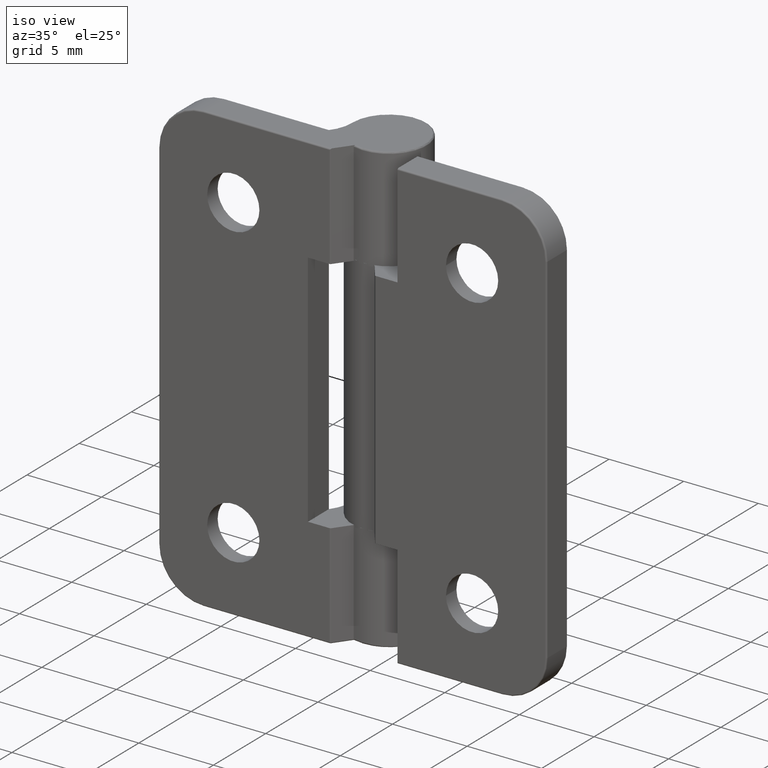
[diagram: clean part render]
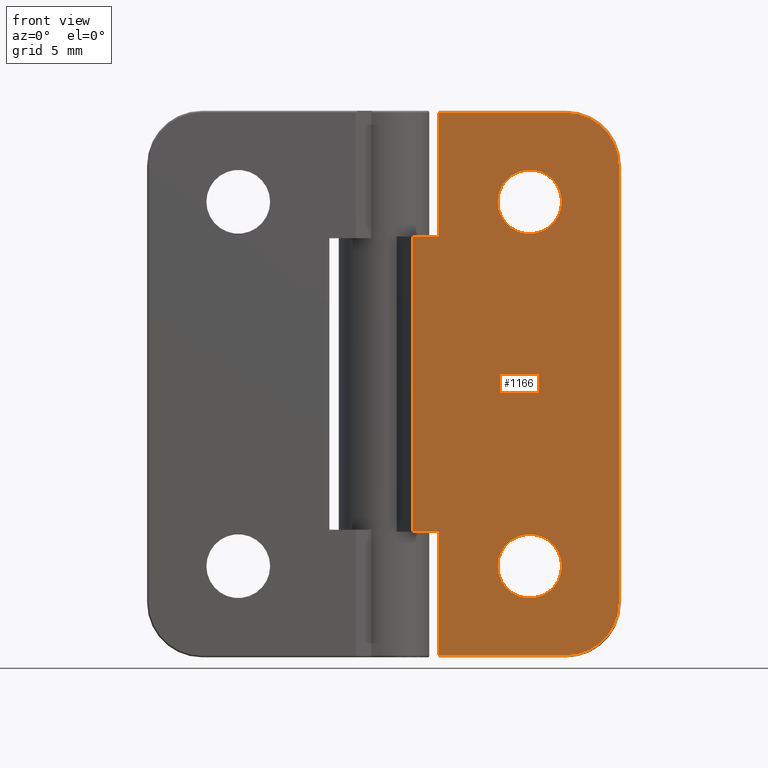
[diagram: tour spotlight — one face highlighted and labeled with its STEP entity id]
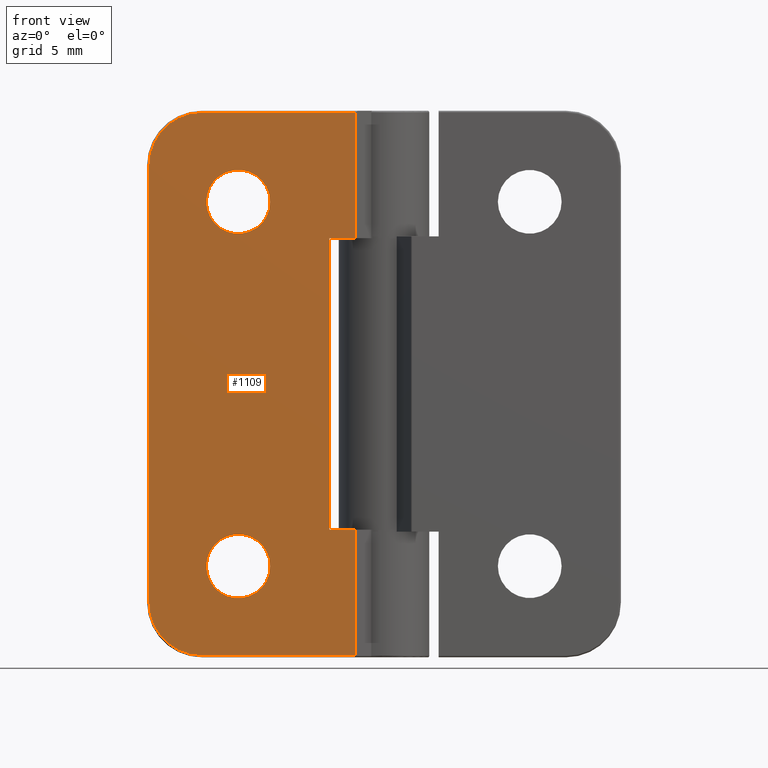
[diagram: tour spotlight — one face highlighted and labeled with its STEP entity id]
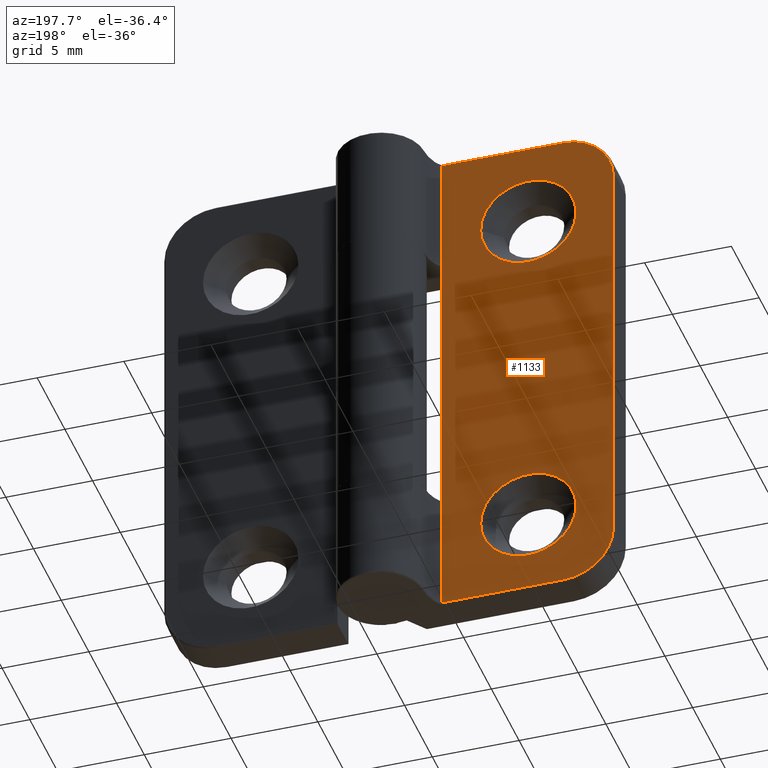
[diagram: tour spotlight — one face highlighted and labeled with its STEP entity id]
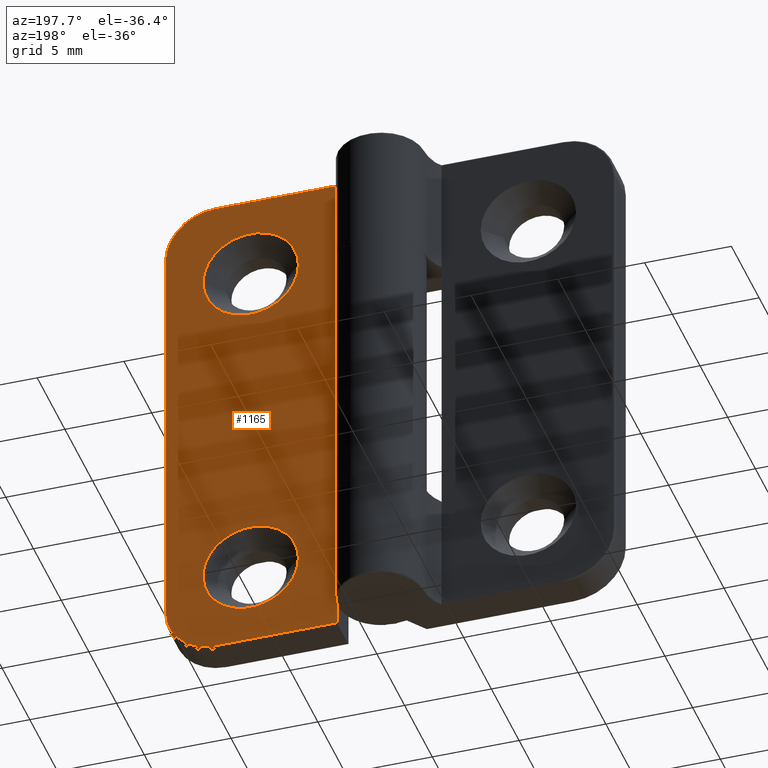
[diagram: tour spotlight — one face highlighted and labeled with its STEP entity id]
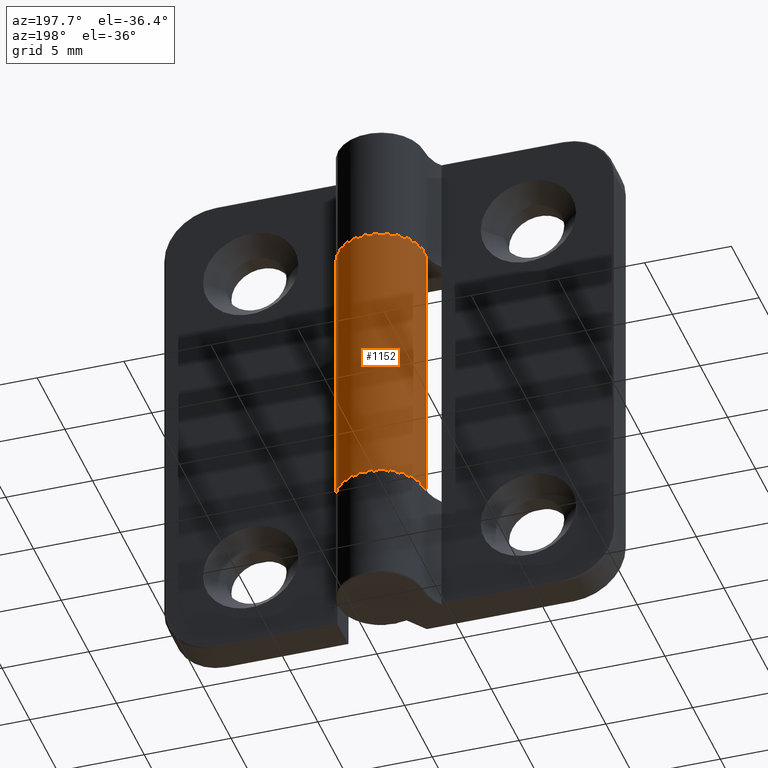
[diagram: tour spotlight — one face highlighted and labeled with its STEP entity id]
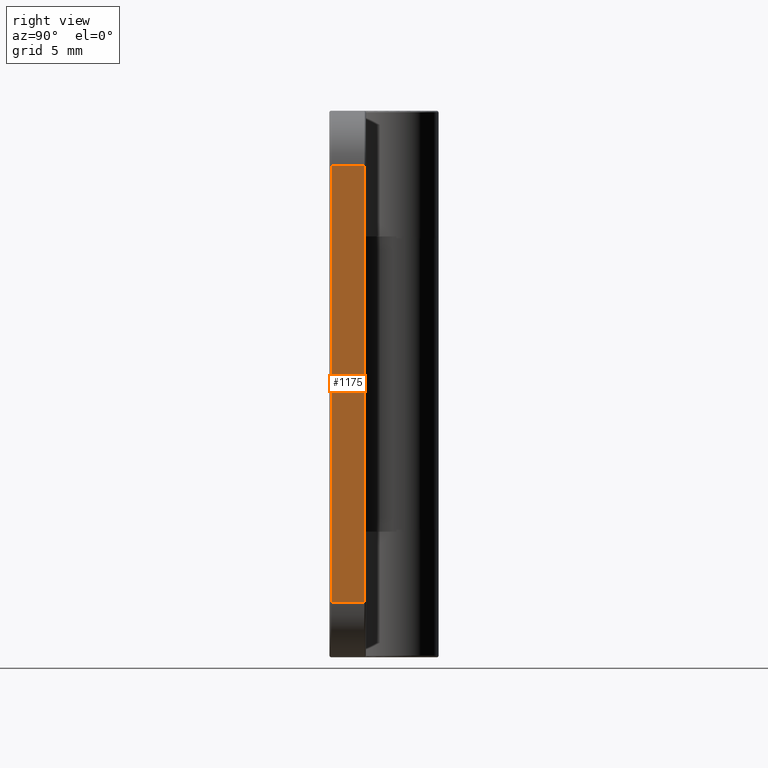
[diagram: tour spotlight — one face highlighted and labeled with its STEP entity id]
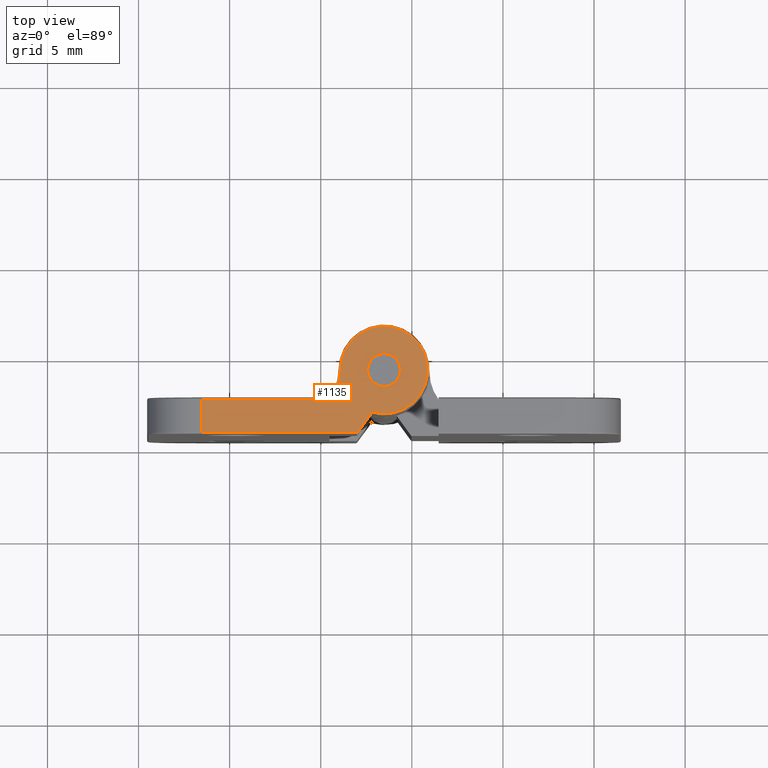
[diagram: tour spotlight — one face highlighted and labeled with its STEP entity id]
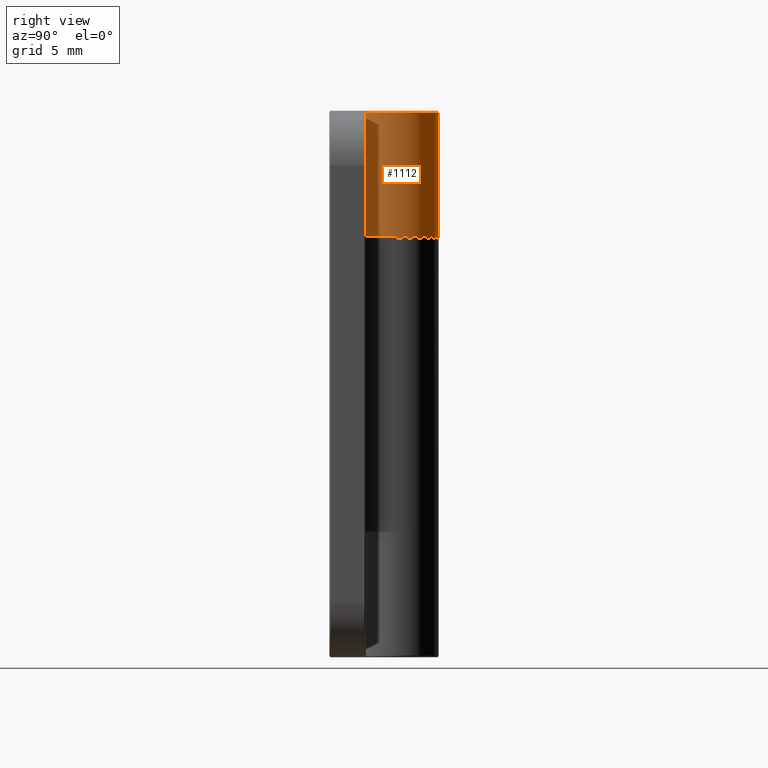
[diagram: tour spotlight — one face highlighted and labeled with its STEP entity id]
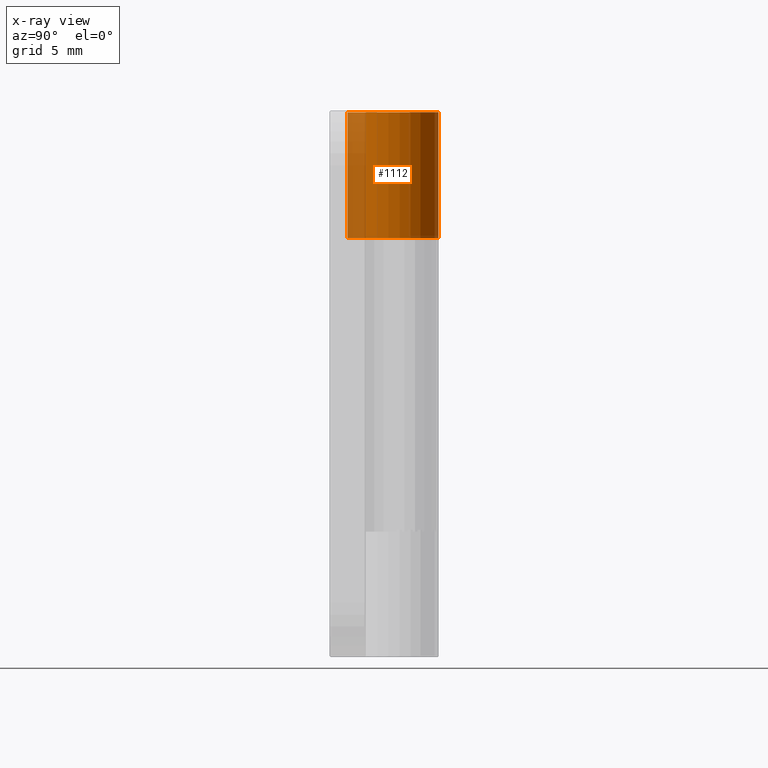
[diagram: x-ray of the same camera — body ghosted, this tour face saturated]
A machine part: a face-by-face anatomy tour. The part has 73 B-rep faces; the first image is the clean iso view, then the 8 largest visible faces are spotlighted one at a time (largest first), each with its STEP entity span.

Face 1 — front view, entity #1166. In plain terms, the highlighted planar face has unit normal (-0, -1, 0).
Definition (entity closure, byte-faithful):
#110=FACE_BOUND('',#351,.T.);
#111=FACE_BOUND('',#352,.T.);
#179=CIRCLE('',#1299,2.9);
#182=CIRCLE('',#1304,2.9);
#193=CIRCLE('',#1322,1.75);
#194=CIRCLE('',#1323,1.75);
#259=FACE_OUTER_BOUND('',#350,.T.);
#350=EDGE_LOOP('',(#1042,#1043,#1044,#1045,#1046,#1047,#1048,#1049,#1050,
#1051));
#351=EDGE_LOOP('',(#1052));
#352=EDGE_LOOP('',(#1053));
#408=LINE('',#1976,#478);
#411=LINE('',#1990,#481);
#414=LINE('',#2001,#484);
#418=LINE('',#2013,#488);
#422=LINE('',#2027,#492);
#426=LINE('',#2037,#496);
#429=LINE('',#2044,#499);
#432=LINE('',#2059,#502);
#478=VECTOR('',#1562,1.44907754082968);
#481=VECTOR('',#1575,6.8);
#484=VECTOR('',#1584,6.8);
#488=VECTOR('',#1594,1.44907754082968);
#492=VECTOR('',#1610,16.2);
#496=VECTOR('',#1622,7.);
#499=VECTOR('',#1629,6.99999999999999);
#502=VECTOR('',#1646,24.);
#567=VERTEX_POINT('',#1974);
#568=VERTEX_POINT('',#1975);
#574=VERTEX_POINT('',#1989);
#578=VERTEX_POINT('',#1999);
#579=VERTEX_POINT('',#2000);
#584=VERTEX_POINT('',#2012);
#590=VERTEX_POINT('',#2035);
#592=VERTEX_POINT('',#2043);
#594=VERTEX_POINT('',#2049);
#596=VERTEX_POINT('',#2055);
#607=VERTEX_POINT('',#2094);
#608=VERTEX_POINT('',#2096);
#701=EDGE_CURVE('',#567,#568,#408,.T.);
#708=EDGE_CURVE('',#574,#567,#411,.T.);
#713=EDGE_CURVE('',#578,#579,#414,.T.);
#719=EDGE_CURVE('',#584,#578,#418,.T.);
#727=EDGE_CURVE('',#584,#568,#422,.T.);
#732=EDGE_CURVE('',#590,#579,#426,.T.);
#735=EDGE_CURVE('',#574,#592,#429,.T.);
#740=EDGE_CURVE('',#592,#594,#179,.T.);
#743=EDGE_CURVE('',#594,#596,#432,.T.);
#745=EDGE_CURVE('',#596,#590,#182,.T.);
#761=EDGE_CURVE('',#607,#607,#193,.T.);
#762=EDGE_CURVE('',#608,#608,#194,.T.);
#1042=ORIENTED_EDGE('',*,*,#701,.T.);
#1043=ORIENTED_EDGE('',*,*,#727,.F.);
#1044=ORIENTED_EDGE('',*,*,#719,.T.);
#1045=ORIENTED_EDGE('',*,*,#713,.T.);
#1046=ORIENTED_EDGE('',*,*,#732,.F.);
#1047=ORIENTED_EDGE('',*,*,#745,.F.);
#1048=ORIENTED_EDGE('',*,*,#743,.F.);
#1049=ORIENTED_EDGE('',*,*,#740,.F.);
#1050=ORIENTED_EDGE('',*,*,#735,.F.);
#1051=ORIENTED_EDGE('',*,*,#708,.T.);
#1052=ORIENTED_EDGE('',*,*,#761,.T.);
#1053=ORIENTED_EDGE('',*,*,#762,.T.);
#1101=PLANE('',#1321);
#1166=ADVANCED_FACE('',(#259,#110,#111),#1101,.T.);
#1299=AXIS2_PLACEMENT_3D('',#2053,#1639,#1640);
#1304=AXIS2_PLACEMENT_3D('',#2062,#1651,#1652);
#1321=AXIS2_PLACEMENT_3D('',#2093,#1690,#1691);
#1322=AXIS2_PLACEMENT_3D('',#2095,#1692,#1693);
#1323=AXIS2_PLACEMENT_3D('',#2097,#1694,#1695);
#1562=DIRECTION('',(1.,7.24058494320754E-17,-5.47998327445962E-16));
#1575=DIRECTION('',(2.40408260132078E-16,1.74069642853504E-32,1.));
#1584=DIRECTION('',(1.77068165512974E-16,1.28207709313462E-32,1.));
#1594=DIRECTION('',(-1.,-7.24058494320754E-17,0.));
#1610=DIRECTION('',(0.,0.,-1.));
#1622=DIRECTION('',(1.,7.24058494320754E-17,0.));
#1629=DIRECTION('',(-1.,-7.24058494320754E-17,0.));
#1639=DIRECTION('center_axis',(-7.24058494320754E-17,1.,0.));
#1640=DIRECTION('ref_axis',(-0.707106781186548,-5.11986671309927E-17,-0.707106781186547));
#1646=DIRECTION('',(0.,0.,1.));
#1651=DIRECTION('center_axis',(-7.24058494320754E-17,1.,0.));
#1652=DIRECTION('ref_axis',(-0.707106781186548,-5.11986671309927E-17,0.707106781186547));
#1690=DIRECTION('center_axis',(7.24058494320754E-17,-1.,0.));
#1691=DIRECTION('ref_axis',(1.,7.24058494320754E-17,0.));
#1692=DIRECTION('center_axis',(-7.24058494320754E-17,1.,0.));
#1693=DIRECTION('ref_axis',(1.,-2.77555756156289E-17,0.));
#1694=DIRECTION('center_axis',(-7.24058494320754E-17,1.,0.));
#1695=DIRECTION('ref_axis',(1.,-2.77555756156289E-17,0.));
#1974=CARTESIAN_POINT('',(-3.,0.,-8.1));
#1975=CARTESIAN_POINT('',(-1.55092245917032,0.,-8.1));
#1976=CARTESIAN_POINT('',(-8.,-4.16333634234434E-16,-8.09999999999999));
#1989=CARTESIAN_POINT('',(-3.,-1.10871456579507E-16,-14.9));
#1990=CARTESIAN_POINT('',(-3.,-1.38777878078145E-16,-10.9771103082016));
#1999=CARTESIAN_POINT('',(-3.,0.,8.1));
#2000=CARTESIAN_POINT('',(-3.,-1.10871456579507E-16,14.9));
#2001=CARTESIAN_POINT('',(-3.,-1.38777878078145E-16,4.05));
#2012=CARTESIAN_POINT('',(-1.55092245917032,0.,8.1));
#2013=CARTESIAN_POINT('',(-3.94807878411039,-1.38777878078145E-16,8.1));
#2027=CARTESIAN_POINT('',(-1.55092245917032,0.,0.));
#2035=CARTESIAN_POINT('',(-10.,-6.07153216591882E-16,14.9));
#2037=CARTESIAN_POINT('',(-6.50000000501836,-3.64291929955129E-16,14.9));
#2043=CARTESIAN_POINT('',(-10.,-6.17712402604035E-16,-14.9));
#2044=CARTESIAN_POINT('',(-6.50000000501836,-3.64291929955129E-16,-14.9));
#2049=CARTESIAN_POINT('',(-12.9,-8.17130179944901E-16,-12.));
#2053=CARTESIAN_POINT('Origin',(-10.,-6.07153216591882E-16,-12.));
#2055=CARTESIAN_POINT('',(-12.9,-8.32667268468867E-16,12.));
#2059=CARTESIAN_POINT('',(-12.9,-8.32667268468867E-16,0.));
#2062=CARTESIAN_POINT('Origin',(-10.,-6.07153216591882E-16,12.));
#2093=CARTESIAN_POINT('Origin',(-13.,-8.32667268468867E-16,0.));
#2094=CARTESIAN_POINT('',(-9.75,-7.84095011141517E-16,10.));
#2095=CARTESIAN_POINT('Origin',(-8.,-8.32667268468867E-16,10.));
#2096=CARTESIAN_POINT('',(-9.75,-7.84095011141517E-16,-10.));
#2097=CARTESIAN_POINT('Origin',(-8.,-8.32667268468867E-16,-10.));

Face 2 — front view, entity #1109. In plain terms, the highlighted planar face has unit normal (0, -1, 0).
Definition (entity closure, byte-faithful):
#94=FACE_BOUND('',#278,.T.);
#95=FACE_BOUND('',#279,.T.);
#126=CIRCLE('',#1195,2.9);
#127=CIRCLE('',#1196,2.9);
#128=CIRCLE('',#1197,1.75);
#129=CIRCLE('',#1198,1.75);
#202=FACE_OUTER_BOUND('',#277,.T.);
#277=EDGE_LOOP('',(#788,#789,#790,#791,#792,#793,#794,#795,#796,#797));
#278=EDGE_LOOP('',(#798));
#279=EDGE_LOOP('',(#799));
#371=LINE('',#1745,#441);
#375=LINE('',#1753,#445);
#377=LINE('',#1765,#447);
#379=LINE('',#1777,#449);
#380=LINE('',#1779,#450);
#381=LINE('',#1783,#451);
#382=LINE('',#1787,#452);
#383=LINE('',#1788,#453);
#441=VECTOR('',#1349,16.);
#445=VECTOR('',#1355,1.44907754082968);
#447=VECTOR('',#1367,1.44907754082968);
#449=VECTOR('',#1379,6.9);
#450=VECTOR('',#1380,8.44907754082968);
#451=VECTOR('',#1383,24.);
#452=VECTOR('',#1386,8.44907754082968);
#453=VECTOR('',#1387,6.9);
#511=VERTEX_POINT('',#1743);
#512=VERTEX_POINT('',#1744);
#515=VERTEX_POINT('',#1752);
#520=VERTEX_POINT('',#1764);
#525=VERTEX_POINT('',#1776);
#526=VERTEX_POINT('',#1778);
#527=VERTEX_POINT('',#1780);
#528=VERTEX_POINT('',#1782);
#529=VERTEX_POINT('',#1784);
#530=VERTEX_POINT('',#1786);
#531=VERTEX_POINT('',#1789);
#532=VERTEX_POINT('',#1791);
#613=EDGE_CURVE('',#511,#512,#371,.T.);
#617=EDGE_CURVE('',#512,#515,#375,.T.);
#623=EDGE_CURVE('',#520,#511,#377,.T.);
#629=EDGE_CURVE('',#525,#515,#379,.T.);
#630=EDGE_CURVE('',#526,#525,#380,.T.);
#631=EDGE_CURVE('',#527,#526,#126,.T.);
#632=EDGE_CURVE('',#528,#527,#381,.T.);
#633=EDGE_CURVE('',#529,#528,#127,.T.);
#634=EDGE_CURVE('',#530,#529,#382,.T.);
#635=EDGE_CURVE('',#520,#530,#383,.T.);
#636=EDGE_CURVE('',#531,#531,#128,.T.);
#637=EDGE_CURVE('',#532,#532,#129,.T.);
#788=ORIENTED_EDGE('',*,*,#623,.T.);
#789=ORIENTED_EDGE('',*,*,#613,.T.);
#790=ORIENTED_EDGE('',*,*,#617,.T.);
#791=ORIENTED_EDGE('',*,*,#629,.F.);
#792=ORIENTED_EDGE('',*,*,#630,.F.);
#793=ORIENTED_EDGE('',*,*,#631,.F.);
#794=ORIENTED_EDGE('',*,*,#632,.F.);
#795=ORIENTED_EDGE('',*,*,#633,.F.);
#796=ORIENTED_EDGE('',*,*,#634,.F.);
#797=ORIENTED_EDGE('',*,*,#635,.F.);
#798=ORIENTED_EDGE('',*,*,#636,.T.);
#799=ORIENTED_EDGE('',*,*,#637,.T.);
#1087=PLANE('',#1194);
#1109=ADVANCED_FACE('',(#202,#94,#95),#1087,.T.);
#1194=AXIS2_PLACEMENT_3D('',#1775,#1377,#1378);
#1195=AXIS2_PLACEMENT_3D('',#1781,#1381,#1382);
#1196=AXIS2_PLACEMENT_3D('',#1785,#1384,#1385);
#1197=AXIS2_PLACEMENT_3D('',#1790,#1388,#1389);
#1198=AXIS2_PLACEMENT_3D('',#1792,#1390,#1391);
#1349=DIRECTION('',(6.93889390390723E-17,5.02416507231453E-33,1.));
#1355=DIRECTION('',(1.,7.24058494320754E-17,0.));
#1367=DIRECTION('',(-1.,-7.24058494320754E-17,0.));
#1377=DIRECTION('center_axis',(7.24058494320754E-17,-1.,0.));
#1378=DIRECTION('ref_axis',(1.,7.24058494320754E-17,0.));
#1379=DIRECTION('',(0.,0.,-1.));
#1380=DIRECTION('',(1.,7.24058494320754E-17,0.));
#1381=DIRECTION('center_axis',(-7.24058494320754E-17,1.,0.));
#1382=DIRECTION('ref_axis',(-0.707106781186548,-5.11986671309927E-17,0.707106781186547));
#1383=DIRECTION('',(0.,0.,1.));
#1384=DIRECTION('center_axis',(-7.24058494320754E-17,1.,0.));
#1385=DIRECTION('ref_axis',(-0.707106781186548,-5.11986671309927E-17,-0.707106781186547));
#1386=DIRECTION('',(-1.,-7.24058494320754E-17,0.));
#1387=DIRECTION('',(0.,0.,-1.));
#1388=DIRECTION('center_axis',(-7.24058494320754E-17,1.,0.));
#1389=DIRECTION('ref_axis',(1.,-2.77555756156289E-17,0.));
#1390=DIRECTION('center_axis',(-7.24058494320754E-17,1.,0.));
#1391=DIRECTION('ref_axis',(1.,-2.77555756156289E-17,0.));
#1743=CARTESIAN_POINT('',(-3.,0.,-8.));
#1744=CARTESIAN_POINT('',(-3.,0.,8.));
#1745=CARTESIAN_POINT('',(-3.,-1.38777878078145E-16,-4.));
#1752=CARTESIAN_POINT('',(-1.55092245917032,0.,8.));
#1753=CARTESIAN_POINT('',(-8.,-4.16333634234434E-16,8.));
#1764=CARTESIAN_POINT('',(-1.55092245917032,0.,-8.));
#1765=CARTESIAN_POINT('',(-3.94807878411039,-1.38777878078145E-16,-8.));
#1775=CARTESIAN_POINT('Origin',(-13.,-8.32667268468867E-16,0.));
#1776=CARTESIAN_POINT('',(-1.55092245917032,0.,14.9));
#1777=CARTESIAN_POINT('',(-1.55092245917032,0.,0.));
#1778=CARTESIAN_POINT('',(-10.,-6.07153216591882E-16,14.9));
#1779=CARTESIAN_POINT('',(-6.50000000501836,-3.64291929955129E-16,14.9));
#1780=CARTESIAN_POINT('',(-12.9,-8.32667268468867E-16,12.));
#1781=CARTESIAN_POINT('Origin',(-10.,-6.07153216591882E-16,12.));
#1782=CARTESIAN_POINT('',(-12.9,-8.17130179944901E-16,-12.));
#1783=CARTESIAN_POINT('',(-12.9,-8.32667268468867E-16,0.));
#1784=CARTESIAN_POINT('',(-10.,-6.17712402604035E-16,-14.9));
#1785=CARTESIAN_POINT('Origin',(-10.,-6.07153216591882E-16,-12.));
#1786=CARTESIAN_POINT('',(-1.55092245917032,-5.94976634279118E-18,-14.9));
#1787=CARTESIAN_POINT('',(-6.50000000501836,-3.64291929955129E-16,-14.9));
#1788=CARTESIAN_POINT('',(-1.55092245917032,0.,0.));
#1789=CARTESIAN_POINT('',(-9.75,-7.84095011141517E-16,-10.));
#1790=CARTESIAN_POINT('Origin',(-8.,-8.32667268468867E-16,-10.));
#1791=CARTESIAN_POINT('',(-9.75,-7.84095011141517E-16,10.));
#1792=CARTESIAN_POINT('Origin',(-8.,-8.32667268468867E-16,10.));

Face 3 — auxiliary view, entity #1133. In plain terms, the highlighted planar face has unit normal (0, 1, 0).
Definition (entity closure, byte-faithful):
#97=FACE_BOUND('',#305,.T.);
#98=FACE_BOUND('',#306,.T.);
#148=CIRCLE('',#1235,2.9);
#152=CIRCLE('',#1241,2.9);
#158=CIRCLE('',#1253,2.75);
#159=CIRCLE('',#1254,2.75);
#226=FACE_OUTER_BOUND('',#304,.T.);
#304=EDGE_LOOP('',(#892,#893,#894,#895,#896,#897,#898,#899));
#305=EDGE_LOOP('',(#900));
#306=EDGE_LOOP('',(#901));
#373=LINE('',#1749,#443);
#388=LINE('',#1820,#458);
#395=LINE('',#1894,#465);
#398=LINE('',#1922,#468);
#400=LINE('',#1931,#470);
#402=LINE('',#1944,#472);
#443=VECTOR('',#1351,16.);
#458=VECTOR('',#1410,6.9);
#465=VECTOR('',#1467,7.);
#468=VECTOR('',#1484,24.);
#470=VECTOR('',#1496,7.);
#472=VECTOR('',#1518,6.9);
#513=VERTEX_POINT('',#1746);
#514=VERTEX_POINT('',#1748);
#538=VERTEX_POINT('',#1819);
#548=VERTEX_POINT('',#1871);
#552=VERTEX_POINT('',#1893);
#555=VERTEX_POINT('',#1912);
#557=VERTEX_POINT('',#1918);
#559=VERTEX_POINT('',#1924);
#562=VERTEX_POINT('',#1945);
#563=VERTEX_POINT('',#1947);
#615=EDGE_CURVE('',#513,#514,#373,.T.);
#646=EDGE_CURVE('',#514,#538,#388,.T.);
#669=EDGE_CURVE('',#538,#552,#395,.T.);
#675=EDGE_CURVE('',#552,#555,#148,.T.);
#678=EDGE_CURVE('',#555,#557,#398,.T.);
#681=EDGE_CURVE('',#557,#559,#152,.T.);
#683=EDGE_CURVE('',#559,#548,#400,.T.);
#690=EDGE_CURVE('',#548,#513,#402,.T.);
#691=EDGE_CURVE('',#562,#562,#158,.T.);
#692=EDGE_CURVE('',#563,#563,#159,.T.);
#892=ORIENTED_EDGE('',*,*,#683,.F.);
#893=ORIENTED_EDGE('',*,*,#681,.F.);
#894=ORIENTED_EDGE('',*,*,#678,.F.);
#895=ORIENTED_EDGE('',*,*,#675,.F.);
#896=ORIENTED_EDGE('',*,*,#669,.F.);
#897=ORIENTED_EDGE('',*,*,#646,.F.);
#898=ORIENTED_EDGE('',*,*,#615,.F.);
#899=ORIENTED_EDGE('',*,*,#690,.F.);
#900=ORIENTED_EDGE('',*,*,#691,.T.);
#901=ORIENTED_EDGE('',*,*,#692,.T.);
#1090=PLANE('',#1252);
#1133=ADVANCED_FACE('',(#226,#97,#98),#1090,.T.);
#1235=AXIS2_PLACEMENT_3D('',#1916,#1477,#1478);
#1241=AXIS2_PLACEMENT_3D('',#1928,#1491,#1492);
#1252=AXIS2_PLACEMENT_3D('',#1943,#1516,#1517);
#1253=AXIS2_PLACEMENT_3D('',#1946,#1519,#1520);
#1254=AXIS2_PLACEMENT_3D('',#1948,#1521,#1522);
#1351=DIRECTION('',(0.,0.,1.));
#1410=DIRECTION('',(0.,0.,1.));
#1467=DIRECTION('',(-1.,2.77555756156289E-17,0.));
#1477=DIRECTION('center_axis',(-2.77555756156289E-17,-1.,0.));
#1478=DIRECTION('ref_axis',(-0.707106781186548,1.96261557335472E-17,0.707106781186547));
#1484=DIRECTION('',(0.,0.,-1.));
#1491=DIRECTION('center_axis',(-2.77555756156289E-17,-1.,0.));
#1492=DIRECTION('ref_axis',(-0.707106781186548,1.96261557335472E-17,-0.707106781186547));
#1496=DIRECTION('',(1.,-2.77555756156289E-17,0.));
#1516=DIRECTION('center_axis',(2.77555756156289E-17,1.,0.));
#1517=DIRECTION('ref_axis',(-1.,4.44089209850063E-17,0.));
#1518=DIRECTION('',(0.,0.,1.));
#1519=DIRECTION('center_axis',(-2.77555756156289E-17,-1.,0.));
#1520=DIRECTION('ref_axis',(1.,-2.77555756156289E-17,0.));
#1521=DIRECTION('center_axis',(-2.77555756156289E-17,-1.,0.));
#1522=DIRECTION('ref_axis',(1.,-2.77555756156289E-17,0.));
#1746=CARTESIAN_POINT('',(-3.,2.,-8.));
#1748=CARTESIAN_POINT('',(-3.,2.,8.));
#1749=CARTESIAN_POINT('',(-3.,2.,0.));
#1819=CARTESIAN_POINT('',(-3.,2.,14.9));
#1820=CARTESIAN_POINT('',(-3.,2.,0.));
#1871=CARTESIAN_POINT('',(-3.,2.,-14.9));
#1893=CARTESIAN_POINT('',(-10.,2.,14.9));
#1894=CARTESIAN_POINT('',(-1.50000000501836,2.,14.9));
#1912=CARTESIAN_POINT('',(-12.9,2.,12.));
#1916=CARTESIAN_POINT('Origin',(-10.,2.,12.));
#1918=CARTESIAN_POINT('',(-12.9,2.,-12.));
#1922=CARTESIAN_POINT('',(-12.9,2.,0.));
#1924=CARTESIAN_POINT('',(-10.,2.,-14.9));
#1928=CARTESIAN_POINT('Origin',(-10.,2.,-12.));
#1931=CARTESIAN_POINT('',(-1.50000000501836,2.,-14.9));
#1943=CARTESIAN_POINT('Origin',(-3.,2.,0.));
#1944=CARTESIAN_POINT('',(-3.,2.,0.));
#1945=CARTESIAN_POINT('',(-5.25,2.,10.));
#1946=CARTESIAN_POINT('Origin',(-8.,2.,10.));
#1947=CARTESIAN_POINT('',(-5.25,2.,-10.));
#1948=CARTESIAN_POINT('Origin',(-8.,2.,-10.));

Face 4 — auxiliary view, entity #1165. In plain terms, the highlighted planar face has unit normal (-0, 1, 0).
Definition (entity closure, byte-faithful):
#108=FACE_BOUND('',#348,.T.);
#109=FACE_BOUND('',#349,.T.);
#186=CIRCLE('',#1310,2.9);
#190=CIRCLE('',#1316,2.9);
#191=CIRCLE('',#1319,2.75);
#192=CIRCLE('',#1320,2.75);
#258=FACE_OUTER_BOUND('',#347,.T.);
#347=EDGE_LOOP('',(#1032,#1033,#1034,#1035,#1036,#1037,#1038,#1039));
#348=EDGE_LOOP('',(#1040));
#349=EDGE_LOOP('',(#1041));
#413=LINE('',#1997,#483);
#416=LINE('',#2005,#486);
#424=LINE('',#2031,#494);
#433=LINE('',#2065,#503);
#435=LINE('',#2078,#505);
#437=LINE('',#2087,#507);
#483=VECTOR('',#1581,6.8);
#486=VECTOR('',#1586,6.8);
#494=VECTOR('',#1616,16.2);
#503=VECTOR('',#1655,7.);
#505=VECTOR('',#1671,24.);
#507=VECTOR('',#1683,7.);
#569=VERTEX_POINT('',#1977);
#577=VERTEX_POINT('',#1995);
#580=VERTEX_POINT('',#2002);
#581=VERTEX_POINT('',#2004);
#598=VERTEX_POINT('',#2064);
#599=VERTEX_POINT('',#2068);
#601=VERTEX_POINT('',#2074);
#603=VERTEX_POINT('',#2080);
#605=VERTEX_POINT('',#2089);
#606=VERTEX_POINT('',#2091);
#712=EDGE_CURVE('',#577,#569,#413,.T.);
#715=EDGE_CURVE('',#580,#581,#416,.T.);
#729=EDGE_CURVE('',#569,#580,#424,.T.);
#746=EDGE_CURVE('',#581,#598,#433,.T.);
#750=EDGE_CURVE('',#598,#599,#186,.T.);
#753=EDGE_CURVE('',#599,#601,#435,.T.);
#756=EDGE_CURVE('',#601,#603,#190,.T.);
#758=EDGE_CURVE('',#603,#577,#437,.T.);
#759=EDGE_CURVE('',#605,#605,#191,.T.);
#760=EDGE_CURVE('',#606,#606,#192,.T.);
#1032=ORIENTED_EDGE('',*,*,#758,.F.);
#1033=ORIENTED_EDGE('',*,*,#756,.F.);
#1034=ORIENTED_EDGE('',*,*,#753,.F.);
#1035=ORIENTED_EDGE('',*,*,#750,.F.);
#1036=ORIENTED_EDGE('',*,*,#746,.F.);
#1037=ORIENTED_EDGE('',*,*,#715,.F.);
#1038=ORIENTED_EDGE('',*,*,#729,.F.);
#1039=ORIENTED_EDGE('',*,*,#712,.F.);
#1040=ORIENTED_EDGE('',*,*,#759,.T.);
#1041=ORIENTED_EDGE('',*,*,#760,.T.);
#1100=PLANE('',#1318);
#1165=ADVANCED_FACE('',(#258,#108,#109),#1100,.T.);
#1310=AXIS2_PLACEMENT_3D('',#2072,#1664,#1665);
#1316=AXIS2_PLACEMENT_3D('',#2084,#1678,#1679);
#1318=AXIS2_PLACEMENT_3D('',#2088,#1684,#1685);
#1319=AXIS2_PLACEMENT_3D('',#2090,#1686,#1687);
#1320=AXIS2_PLACEMENT_3D('',#2092,#1688,#1689);
#1581=DIRECTION('',(0.,0.,1.));
#1586=DIRECTION('',(0.,0.,1.));
#1616=DIRECTION('',(0.,0.,1.));
#1655=DIRECTION('',(-1.,2.77555756156289E-17,0.));
#1664=DIRECTION('center_axis',(-2.77555756156289E-17,-1.,0.));
#1665=DIRECTION('ref_axis',(-0.707106781186548,1.96261557335472E-17,0.707106781186547));
#1671=DIRECTION('',(0.,0.,-1.));
#1678=DIRECTION('center_axis',(-2.77555756156289E-17,-1.,0.));
#1679=DIRECTION('ref_axis',(-0.707106781186548,1.96261557335472E-17,-0.707106781186547));
#1683=DIRECTION('',(1.,-2.77555756156289E-17,0.));
#1684=DIRECTION('center_axis',(2.77555756156289E-17,1.,0.));
#1685=DIRECTION('ref_axis',(-1.,4.44089209850063E-17,0.));
#1686=DIRECTION('center_axis',(-2.77555756156289E-17,-1.,0.));
#1687=DIRECTION('ref_axis',(1.,-2.77555756156289E-17,0.));
#1688=DIRECTION('center_axis',(-2.77555756156289E-17,-1.,0.));
#1689=DIRECTION('ref_axis',(1.,-2.77555756156289E-17,0.));
#1977=CARTESIAN_POINT('',(-3.,2.,-8.1));
#1995=CARTESIAN_POINT('',(-3.,2.,-14.9));
#1997=CARTESIAN_POINT('',(-3.,2.,0.));
#2002=CARTESIAN_POINT('',(-3.,2.,8.1));
#2004=CARTESIAN_POINT('',(-3.,2.,14.9));
#2005=CARTESIAN_POINT('',(-3.,2.,0.));
#2031=CARTESIAN_POINT('',(-3.,2.,0.));
#2064=CARTESIAN_POINT('',(-10.,2.,14.9));
#2065=CARTESIAN_POINT('',(-1.50000000501836,2.,14.9));
#2068=CARTESIAN_POINT('',(-12.9,2.,12.));
#2072=CARTESIAN_POINT('Origin',(-10.,2.,12.));
#2074=CARTESIAN_POINT('',(-12.9,2.,-12.));
#2078=CARTESIAN_POINT('',(-12.9,2.,0.));
#2080=CARTESIAN_POINT('',(-10.,2.,-14.9));
#2084=CARTESIAN_POINT('Origin',(-10.,2.,-12.));
#2087=CARTESIAN_POINT('',(-1.50000000501836,2.,-14.9));
#2088=CARTESIAN_POINT('Origin',(-3.,2.,0.));
#2089=CARTESIAN_POINT('',(-5.25,2.,10.));
#2090=CARTESIAN_POINT('Origin',(-8.,2.,10.));
#2091=CARTESIAN_POINT('',(-5.25,2.,-10.));
#2092=CARTESIAN_POINT('Origin',(-8.,2.,-10.));

Face 5 — auxiliary view, entity #1152. In plain terms, the highlighted cylindrical surface (partial cylindrical patch) has radius 2.5 mm, axis along (0, 0, -1).
Definition (entity closure, byte-faithful):
#78=CYLINDRICAL_SURFACE('',#1289,2.5);
#164=CIRCLE('',#1273,2.5);
#172=CIRCLE('',#1284,2.5);
#245=FACE_OUTER_BOUND('',#334,.T.);
#334=EDGE_LOOP('',(#980,#981,#982,#983));
#420=LINE('',#2024,#490);
#423=LINE('',#2029,#493);
#490=VECTOR('',#1606,16.2);
#493=VECTOR('',#1613,16.2);
#570=VERTEX_POINT('',#1979);
#571=VERTEX_POINT('',#1981);
#586=VERTEX_POINT('',#2016);
#587=VERTEX_POINT('',#2018);
#704=EDGE_CURVE('',#571,#570,#164,.T.);
#722=EDGE_CURVE('',#587,#586,#172,.T.);
#725=EDGE_CURVE('',#586,#571,#420,.T.);
#728=EDGE_CURVE('',#570,#587,#423,.T.);
#980=ORIENTED_EDGE('',*,*,#704,.T.);
#981=ORIENTED_EDGE('',*,*,#728,.T.);
#982=ORIENTED_EDGE('',*,*,#722,.T.);
#983=ORIENTED_EDGE('',*,*,#725,.T.);
#1152=ADVANCED_FACE('',(#245),#78,.T.);
#1273=AXIS2_PLACEMENT_3D('',#1982,#1566,#1567);
#1284=AXIS2_PLACEMENT_3D('',#2019,#1598,#1599);
#1289=AXIS2_PLACEMENT_3D('',#2028,#1611,#1612);
#1566=DIRECTION('center_axis',(5.47998327445962E-16,0.,1.));
#1567=DIRECTION('ref_axis',(1.,0.,0.));
#1598=DIRECTION('center_axis',(0.,0.,-1.));
#1599=DIRECTION('ref_axis',(1.,0.,0.));
#1606=DIRECTION('',(0.,0.,-1.));
#1611=DIRECTION('center_axis',(0.,0.,1.));
#1612=DIRECTION('ref_axis',(1.,0.,0.));
#1613=DIRECTION('',(0.,0.,1.));
#1979=CARTESIAN_POINT('',(-2.5,3.5,-8.1));
#1981=CARTESIAN_POINT('',(-0.699999999999997,1.1,-8.1));
#1982=CARTESIAN_POINT('Origin',(0.,3.5,-8.1));
#2016=CARTESIAN_POINT('',(-0.699999999999997,1.1,8.1));
#2018=CARTESIAN_POINT('',(-2.5,3.5,8.1));
#2019=CARTESIAN_POINT('Origin',(0.,3.5,8.1));
#2024=CARTESIAN_POINT('',(-0.699999999999997,1.1,0.));
#2028=CARTESIAN_POINT('Origin',(0.,3.5,0.));
#2029=CARTESIAN_POINT('',(-2.5,3.5,0.));

Face 6 — right view, entity #1175. In plain terms, the highlighted planar face has unit normal (1, -0, -0).
Definition (entity closure, byte-faithful):
#268=FACE_OUTER_BOUND('',#366,.T.);
#366=EDGE_LOOP('',(#1076,#1077,#1078,#1079));
#431=LINE('',#2058,#501);
#434=LINE('',#2077,#504);
#438=LINE('',#2099,#508);
#440=LINE('',#2103,#510);
#501=VECTOR('',#1645,24.);
#504=VECTOR('',#1670,24.);
#508=VECTOR('',#1698,1.8);
#510=VECTOR('',#1704,1.79999999999999);
#595=VERTEX_POINT('',#2050);
#597=VERTEX_POINT('',#2056);
#600=VERTEX_POINT('',#2069);
#602=VERTEX_POINT('',#2075);
#742=EDGE_CURVE('',#597,#595,#431,.T.);
#752=EDGE_CURVE('',#602,#600,#434,.T.);
#763=EDGE_CURVE('',#595,#602,#438,.T.);
#765=EDGE_CURVE('',#600,#597,#440,.T.);
#1076=ORIENTED_EDGE('',*,*,#742,.F.);
#1077=ORIENTED_EDGE('',*,*,#765,.F.);
#1078=ORIENTED_EDGE('',*,*,#752,.F.);
#1079=ORIENTED_EDGE('',*,*,#763,.F.);
#1103=PLANE('',#1334);
#1175=ADVANCED_FACE('',(#268),#1103,.T.);
#1334=AXIS2_PLACEMENT_3D('',#2113,#1719,#1720);
#1645=DIRECTION('',(0.,0.,-1.));
#1670=DIRECTION('',(0.,0.,1.));
#1698=DIRECTION('',(-1.11022302462516E-15,1.,0.));
#1704=DIRECTION('',(1.11022302462516E-15,-1.,0.));
#1719=DIRECTION('center_axis',(-1.,-1.11022302462516E-15,0.));
#1720=DIRECTION('ref_axis',(1.06581410364015E-15,-1.,0.));
#2050=CARTESIAN_POINT('',(-13.,0.100000000000002,-12.));
#2056=CARTESIAN_POINT('',(-13.,0.099999999999999,12.));
#2058=CARTESIAN_POINT('',(-13.,0.0999999999999991,0.));
#2069=CARTESIAN_POINT('',(-13.,1.89999999999999,12.));
#2075=CARTESIAN_POINT('',(-13.,1.9,-12.));
#2077=CARTESIAN_POINT('',(-13.,1.9,0.));
#2099=CARTESIAN_POINT('',(-13.,2.74999999623622,-12.));
#2103=CARTESIAN_POINT('',(-13.,2.74999999623622,12.));
#2113=CARTESIAN_POINT('Origin',(-13.,2.,0.));

Face 7 — top view, entity #1135. In plain terms, the highlighted planar face has unit normal (0, 0, 1).
Definition (entity closure, byte-faithful):
#99=FACE_BOUND('',#309,.T.);
#132=CIRCLE('',#1208,0.9);
#154=CIRCLE('',#1245,2.4);
#155=CIRCLE('',#1247,2.59999999999999);
#228=FACE_OUTER_BOUND('',#308,.T.);
#308=EDGE_LOOP('',(#906,#907,#908,#909,#910,#911));
#309=EDGE_LOOP('',(#912));
#386=LINE('',#1812,#456);
#392=LINE('',#1850,#462);
#396=LINE('',#1898,#466);
#404=LINE('',#1952,#474);
#456=VECTOR('',#1400,1.34304628328722);
#462=VECTOR('',#1452,8.57272727272727);
#466=VECTOR('',#1470,7.04939015319192);
#474=VECTOR('',#1528,1.8);
#535=VERTEX_POINT('',#1800);
#536=VERTEX_POINT('',#1811);
#539=VERTEX_POINT('',#1823);
#545=VERTEX_POINT('',#1846);
#553=VERTEX_POINT('',#1895);
#554=VERTEX_POINT('',#1897);
#561=VERTEX_POINT('',#1933);
#642=EDGE_CURVE('',#535,#536,#386,.T.);
#648=EDGE_CURVE('',#539,#539,#132,.T.);
#661=EDGE_CURVE('',#536,#545,#392,.T.);
#671=EDGE_CURVE('',#553,#554,#396,.T.);
#685=EDGE_CURVE('',#561,#535,#154,.T.);
#686=EDGE_CURVE('',#554,#561,#155,.T.);
#694=EDGE_CURVE('',#545,#553,#404,.T.);
#906=ORIENTED_EDGE('',*,*,#661,.F.);
#907=ORIENTED_EDGE('',*,*,#642,.F.);
#908=ORIENTED_EDGE('',*,*,#685,.F.);
#909=ORIENTED_EDGE('',*,*,#686,.F.);
#910=ORIENTED_EDGE('',*,*,#671,.F.);
#911=ORIENTED_EDGE('',*,*,#694,.F.);
#912=ORIENTED_EDGE('',*,*,#648,.T.);
#1091=PLANE('',#1256);
#1135=ADVANCED_FACE('',(#228,#99),#1091,.T.);
#1208=AXIS2_PLACEMENT_3D('',#1824,#1415,#1416);
#1245=AXIS2_PLACEMENT_3D('',#1935,#1501,#1502);
#1247=AXIS2_PLACEMENT_3D('',#1937,#1505,#1506);
#1256=AXIS2_PLACEMENT_3D('',#1951,#1526,#1527);
#1400=DIRECTION('',(-0.588171697675047,-0.808736084303188,0.));
#1415=DIRECTION('center_axis',(0.,0.,-1.));
#1416=DIRECTION('ref_axis',(-1.,0.,0.));
#1452=DIRECTION('',(-1.,-7.24058494320754E-17,0.));
#1470=DIRECTION('',(1.,-2.77555756156289E-17,0.));
#1501=DIRECTION('center_axis',(0.,0.,-1.));
#1502=DIRECTION('ref_axis',(0.8,0.6,0.));
#1505=DIRECTION('center_axis',(0.,0.,1.));
#1506=DIRECTION('ref_axis',(0.948683298050514,-0.316227766016838,0.));
#1526=DIRECTION('center_axis',(0.,0.,1.));
#1527=DIRECTION('ref_axis',(1.,0.,0.));
#1528=DIRECTION('',(-1.11022302462516E-15,1.,0.));
#1800=CARTESIAN_POINT('',(-0.637330914775522,1.18616999218365,15.));
#1811=CARTESIAN_POINT('',(-1.42727272727273,0.1,15.));
#1812=CARTESIAN_POINT('',(-0.40810811163452,1.50135134650253,15.));
#1823=CARTESIAN_POINT('',(0.9,3.5,15.));
#1824=CARTESIAN_POINT('Origin',(0.,3.5,15.));
#1846=CARTESIAN_POINT('',(-10.,0.100000000000002,15.));
#1850=CARTESIAN_POINT('',(-6.50000000501836,0.0999999999999998,15.));
#1895=CARTESIAN_POINT('',(-10.,1.9,15.));
#1897=CARTESIAN_POINT('',(-2.95060984680808,1.9,15.));
#1898=CARTESIAN_POINT('',(-1.50000000501836,1.9,15.));
#1933=CARTESIAN_POINT('',(-2.4,3.5,15.));
#1935=CARTESIAN_POINT('Origin',(0.,3.5,15.));
#1937=CARTESIAN_POINT('Origin',(-4.99999999999999,3.5,15.));
#1951=CARTESIAN_POINT('Origin',(-1.00367164970729E-8,3.49999999247246,15.));
#1952=CARTESIAN_POINT('',(-10.,2.74999999623623,15.));

Face 8 — right view, entity #1112. An x-ray twin of the same camera follows (body ghosted, this face saturated) — the face is partly hidden behind the body. In plain terms, the highlighted cylindrical surface (partial cylindrical patch) has radius 2.5 mm, axis along (0, 0, 1).
Definition (entity closure, byte-faithful):
#59=CYLINDRICAL_SURFACE('',#1203,2.5);
#119=CIRCLE('',#1186,2.5);
#130=CIRCLE('',#1204,2.5);
#205=FACE_OUTER_BOUND('',#282,.T.);
#282=EDGE_LOOP('',(#810,#811,#812,#813));
#385=LINE('',#1799,#455);
#387=LINE('',#1816,#457);
#455=VECTOR('',#1399,6.9);
#457=VECTOR('',#1405,6.9);
#516=VERTEX_POINT('',#1754);
#517=VERTEX_POINT('',#1756);
#534=VERTEX_POINT('',#1798);
#537=VERTEX_POINT('',#1815);
#619=EDGE_CURVE('',#517,#516,#119,.T.);
#640=EDGE_CURVE('',#534,#517,#385,.T.);
#644=EDGE_CURVE('',#516,#537,#387,.T.);
#645=EDGE_CURVE('',#534,#537,#130,.T.);
#810=ORIENTED_EDGE('',*,*,#619,.T.);
#811=ORIENTED_EDGE('',*,*,#644,.T.);
#812=ORIENTED_EDGE('',*,*,#645,.F.);
#813=ORIENTED_EDGE('',*,*,#640,.T.);
#1112=ADVANCED_FACE('',(#205),#59,.T.);
#1186=AXIS2_PLACEMENT_3D('',#1757,#1358,#1359);
#1203=AXIS2_PLACEMENT_3D('',#1814,#1403,#1404);
#1204=AXIS2_PLACEMENT_3D('',#1817,#1406,#1407);
#1358=DIRECTION('center_axis',(0.,0.,1.));
#1359=DIRECTION('ref_axis',(1.,0.,0.));
#1399=DIRECTION('',(0.,0.,-1.));
#1403=DIRECTION('center_axis',(0.,0.,1.));
#1404=DIRECTION('ref_axis',(1.,0.,0.));
#1405=DIRECTION('',(0.,0.,1.));
#1406=DIRECTION('center_axis',(0.,0.,1.));
#1407=DIRECTION('ref_axis',(0.8,0.6,0.));
#1754=CARTESIAN_POINT('',(-2.5,3.5,8.));
#1756=CARTESIAN_POINT('',(-0.699999999999997,1.1,8.));
#1757=CARTESIAN_POINT('Origin',(0.,3.5,8.));
#1798=CARTESIAN_POINT('',(-0.699999999999997,1.1,14.9));
#1799=CARTESIAN_POINT('',(-0.699999999999997,1.1,0.));
#1814=CARTESIAN_POINT('Origin',(0.,3.5,0.));
#1815=CARTESIAN_POINT('',(-2.5,3.5,14.9));
#1816=CARTESIAN_POINT('',(-2.5,3.5,0.));
#1817=CARTESIAN_POINT('Origin',(0.,3.5,14.9));